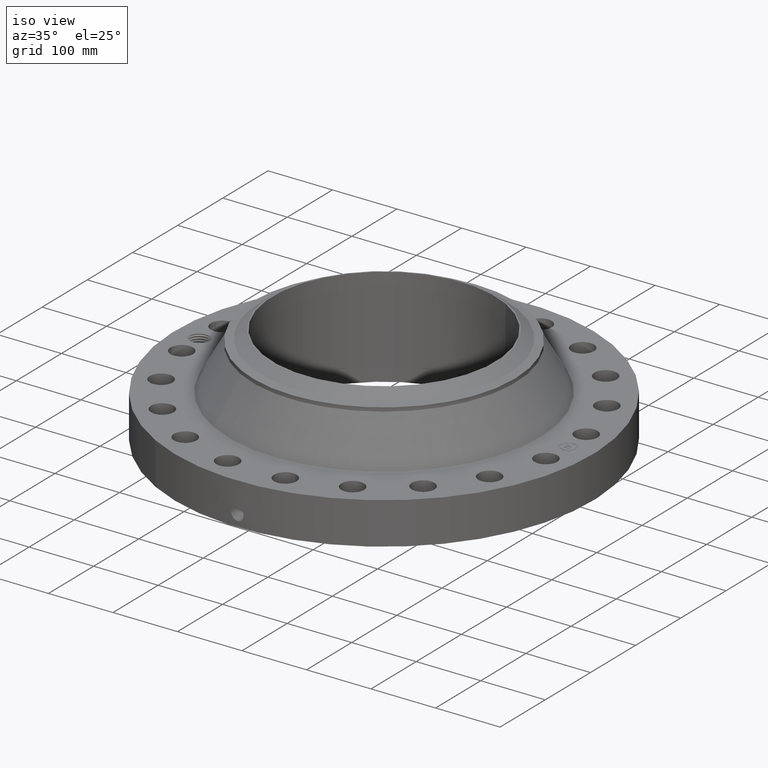
[diagram: clean part render]
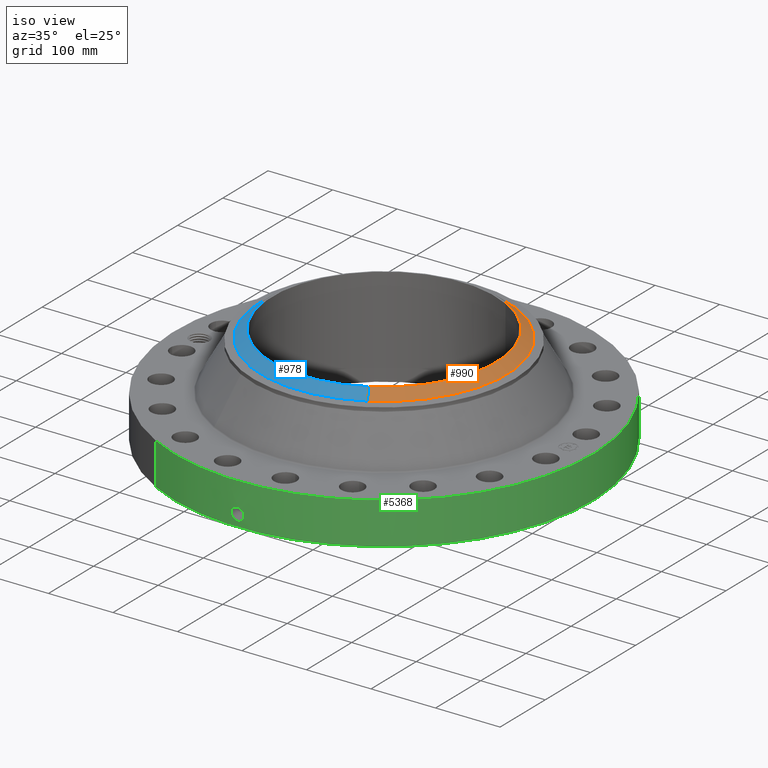
[diagram: same view with three faces highlighted in distinct colors, each labeled with its STEP entity id]
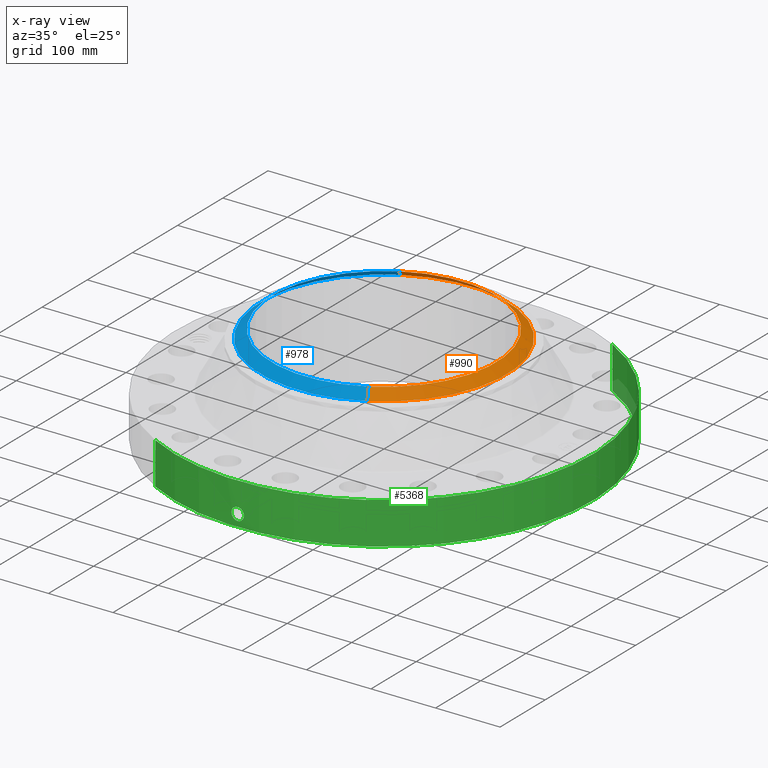
[diagram: x-ray of the same camera — body ghosted, the three highlighted faces saturated]
A machine part, iso view with three faces highlighted in distinct colors.
The next image is the same camera in x-ray (body ghosted, the three faces saturated) — at least one of them is partly hidden behind the body in this view.
Their STEP definitions:

[orange] entity #990 — the highlighted conical surface has half-angle 52.5 deg.
#515=AXIS2_PLACEMENT_3D('Circle Axis2P3D',#513,#514,$) ;
#951=AXIS2_PLACEMENT_3D('Cone Axis2P3D',#948,#949,#950) ;
#981=AXIS2_PLACEMENT_3D('Circle Axis2P3D',#979,#980,$) ;
#513=CARTESIAN_POINT('Axis2P3D Location',(0.,0.,6.06300000002)) ;
#517=CARTESIAN_POINT('Vertex',(3.2887346197,-6.01998834133,6.06300000002)) ;
#519=CARTESIAN_POINT('Vertex',(-3.2887346197,6.01998834133,6.06300000002)) ;
#948=CARTESIAN_POINT('Axis2P3D Location',(0.,0.,6.06300000002)) ;
#953=CARTESIAN_POINT('Line Origine',(-3.44367592225,6.30360649323,5.81501437259)) ;
#957=CARTESIAN_POINT('Vertex',(-3.5986172248,6.58722464514,5.56702874515)) ;
#964=CARTESIAN_POINT('Vertex',(3.5986172248,-6.58722464514,5.56702874515)) ;
#967=CARTESIAN_POINT('Line Origine',(3.44367592225,-6.30360649323,5.81501437259)) ;
#979=CARTESIAN_POINT('Axis2P3D Location',(0.,0.,5.56702874515)) ;
#514=DIRECTION('Axis2P3D Direction',(0.,0.,-0.0393700787402)) ;
#949=DIRECTION('Axis2P3D Direction',(-0.,-0.,-0.0393700787402)) ;
#950=DIRECTION('Axis2P3D XDirection',(-0.0188750212049,0.0345504945626,0.)) ;
#954=DIRECTION('Vector Direction',(-0.014974561121,0.02741075027,-0.023966985394)) ;
#968=DIRECTION('Vector Direction',(0.014974561121,-0.02741075027,-0.023966985394)) ;
#980=DIRECTION('Axis2P3D Direction',(0.,0.,-0.0393700787402)) ;
#955=VECTOR('Line Direction',#954,0.0393700787402) ;
#969=VECTOR('Line Direction',#968,0.0393700787402) ;
#985=ORIENTED_EDGE('',*,*,#521,.F.) ;
#986=ORIENTED_EDGE('',*,*,#971,.T.) ;
#987=ORIENTED_EDGE('',*,*,#983,.T.) ;
#988=ORIENTED_EDGE('',*,*,#959,.F.) ;
#990=ADVANCED_FACE('PartBody',(#989),#952,.T.) ;
#516=CIRCLE('generated circle',#515,6.85974015751) ;
#982=CIRCLE('generated circle',#981,7.50610248105) ;
#952=CONICAL_SURFACE('Cone',#951,6.85974015751,0.916297857297) ;
#521=EDGE_CURVE('',#518,#520,#516,.F.) ;
#959=EDGE_CURVE('',#520,#958,#956,.T.) ;
#971=EDGE_CURVE('',#518,#965,#970,.T.) ;
#983=EDGE_CURVE('',#965,#958,#982,.F.) ;
#984=EDGE_LOOP('',(#985,#986,#987,#988)) ;
#989=FACE_OUTER_BOUND('',#984,.T.) ;
#956=LINE('Line',#953,#955) ;
#970=LINE('Line',#967,#969) ;
#518=VERTEX_POINT('',#517) ;
#520=VERTEX_POINT('',#519) ;
#958=VERTEX_POINT('',#957) ;
#965=VERTEX_POINT('',#964) ;

[blue] entity #978 — the highlighted conical surface has half-angle 52.5 deg.
#524=AXIS2_PLACEMENT_3D('Circle Axis2P3D',#522,#523,$) ;
#951=AXIS2_PLACEMENT_3D('Cone Axis2P3D',#948,#949,#950) ;
#962=AXIS2_PLACEMENT_3D('Circle Axis2P3D',#960,#961,$) ;
#517=CARTESIAN_POINT('Vertex',(3.2887346197,-6.01998834133,6.06300000002)) ;
#519=CARTESIAN_POINT('Vertex',(-3.2887346197,6.01998834133,6.06300000002)) ;
#522=CARTESIAN_POINT('Axis2P3D Location',(0.,0.,6.06300000002)) ;
#948=CARTESIAN_POINT('Axis2P3D Location',(0.,0.,6.06300000002)) ;
#953=CARTESIAN_POINT('Line Origine',(-3.44367592225,6.30360649323,5.81501437259)) ;
#957=CARTESIAN_POINT('Vertex',(-3.5986172248,6.58722464514,5.56702874515)) ;
#960=CARTESIAN_POINT('Axis2P3D Location',(0.,0.,5.56702874515)) ;
#964=CARTESIAN_POINT('Vertex',(3.5986172248,-6.58722464514,5.56702874515)) ;
#967=CARTESIAN_POINT('Line Origine',(3.44367592225,-6.30360649323,5.81501437259)) ;
#523=DIRECTION('Axis2P3D Direction',(0.,0.,-0.0393700787402)) ;
#949=DIRECTION('Axis2P3D Direction',(-0.,-0.,-0.0393700787402)) ;
#950=DIRECTION('Axis2P3D XDirection',(-0.0188750212049,0.0345504945626,0.)) ;
#954=DIRECTION('Vector Direction',(-0.014974561121,0.02741075027,-0.023966985394)) ;
#961=DIRECTION('Axis2P3D Direction',(0.,0.,-0.0393700787402)) ;
#968=DIRECTION('Vector Direction',(0.014974561121,-0.02741075027,-0.023966985394)) ;
#955=VECTOR('Line Direction',#954,0.0393700787402) ;
#969=VECTOR('Line Direction',#968,0.0393700787402) ;
#973=ORIENTED_EDGE('',*,*,#526,.F.) ;
#974=ORIENTED_EDGE('',*,*,#959,.T.) ;
#975=ORIENTED_EDGE('',*,*,#966,.T.) ;
#976=ORIENTED_EDGE('',*,*,#971,.F.) ;
#978=ADVANCED_FACE('PartBody',(#977),#952,.T.) ;
#525=CIRCLE('generated circle',#524,6.85974015751) ;
#963=CIRCLE('generated circle',#962,7.50610248105) ;
#952=CONICAL_SURFACE('Cone',#951,6.85974015751,0.916297857297) ;
#526=EDGE_CURVE('',#520,#518,#525,.F.) ;
#959=EDGE_CURVE('',#520,#958,#956,.T.) ;
#966=EDGE_CURVE('',#958,#965,#963,.F.) ;
#971=EDGE_CURVE('',#518,#965,#970,.T.) ;
#972=EDGE_LOOP('',(#973,#974,#975,#976)) ;
#977=FACE_OUTER_BOUND('',#972,.T.) ;
#956=LINE('Line',#953,#955) ;
#970=LINE('Line',#967,#969) ;
#518=VERTEX_POINT('',#517) ;
#520=VERTEX_POINT('',#519) ;
#958=VERTEX_POINT('',#957) ;
#965=VERTEX_POINT('',#964) ;

[green] entity #5368 — the highlighted cylindrical surface (partial cylindrical patch) has radius 323.85 mm, axis along (0, 0, -1).
#3858=AXIS2_PLACEMENT_3D('Circle Axis2P3D',#3856,#3857,$) ;
#4479=AXIS2_PLACEMENT_3D('Circle Axis2P3D',#4477,#4478,$) ;
#5169=AXIS2_PLACEMENT_3D('Cylinder Axis2P3D',#5166,#5167,#5168) ;
#3851=CARTESIAN_POINT('Vertex',(-6.11267561723,-11.1891776641,1.1189649382E-015)) ;
#3853=CARTESIAN_POINT('Vertex',(6.11267561723,11.1891776641,1.1189649382E-015)) ;
#3856=CARTESIAN_POINT('Axis2P3D Location',(0.,0.,0.)) ;
#4477=CARTESIAN_POINT('Axis2P3D Location',(0.,0.,2.56300000001)) ;
#4481=CARTESIAN_POINT('Vertex',(6.11267561723,11.1891776641,2.56300000001)) ;
#4483=CARTESIAN_POINT('Vertex',(-6.11267561723,-11.1891776641,2.56300000001)) ;
#5166=CARTESIAN_POINT('Axis2P3D Location',(0.,0.,3.03150000001)) ;
#5171=CARTESIAN_POINT('Line Origine',(-6.11267561723,-11.1891776641,1.28150000001)) ;
#5176=CARTESIAN_POINT('Line Origine',(6.11267561723,11.1891776641,1.28150000001)) ;
#5282=CARTESIAN_POINT('Control Point',(0.000716221208487,-12.7499999799,1.10411846088)) ;
#5283=CARTESIAN_POINT('Control Point',(0.0192056781366,-12.7499989413,1.10408110421)) ;
#5284=CARTESIAN_POINT('Control Point',(0.0376918605387,-12.7499573581,1.10259136038)) ;
#5285=CARTESIAN_POINT('Control Point',(0.0559484067636,-12.7498772456,1.09966767561)) ;
#5286=CARTESIAN_POINT('Vertex',(0.000715800027101,-12.74999998,1.10411851024)) ;
#5288=CARTESIAN_POINT('Vertex',(0.0559392649745,-12.7498775403,1.09966915855)) ;
#5292=CARTESIAN_POINT('Control Point',(0.0559391674778,-12.7498772861,1.09966860309)) ;
#5293=CARTESIAN_POINT('Control Point',(0.0961344607188,-12.7497009322,1.09514556337)) ;
#5294=CARTESIAN_POINT('Control Point',(0.135662238861,-12.7493301537,1.08330267512)) ;
#5295=CARTESIAN_POINT('Control Point',(0.172040385174,-12.7488392455,1.06494868271)) ;
#5296=CARTESIAN_POINT('Vertex',(0.172040385174,-12.7488392455,1.06494868271)) ;
#5300=CARTESIAN_POINT('Control Point',(0.0308107318399,-12.7499627725,0.341174001278)) ;
#5301=CARTESIAN_POINT('Control Point',(0.0999545299738,-12.7497956841,0.349935336603)) ;
#5302=CARTESIAN_POINT('Control Point',(0.166759327886,-12.7491655316,0.374146678936)) ;
#5303=CARTESIAN_POINT('Control Point',(0.226389865575,-12.7481446892,0.412973157252)) ;
#5304=CARTESIAN_POINT('Control Point',(0.298759169496,-12.7465677606,0.487010236012)) ;
#5305=CARTESIAN_POINT('Control Point',(0.34348090487,-12.7453828607,0.57721566925)) ;
#5306=CARTESIAN_POINT('Control Point',(0.354926191079,-12.7450633095,0.607930225883)) ;
#5307=CARTESIAN_POINT('Control Point',(0.373429784098,-12.7445343217,0.679245154671)) ;
#5308=CARTESIAN_POINT('Control Point',(0.375104757108,-12.744479267,0.752596904483)) ;
#5309=CARTESIAN_POINT('Control Point',(0.370729719895,-12.7446111714,0.793234525347)) ;
#5310=CARTESIAN_POINT('Control Point',(0.348316602872,-12.7452690159,0.885611096278)) ;
#5311=CARTESIAN_POINT('Control Point',(0.29900553411,-12.7465456055,0.966961752377)) ;
#5312=CARTESIAN_POINT('Control Point',(0.262643867128,-12.747395247,1.00786909636)) ;
#5313=CARTESIAN_POINT('Control Point',(0.219548979704,-12.7481981364,1.04097900281)) ;
#5314=CARTESIAN_POINT('Control Point',(0.172040385174,-12.7488392455,1.06494868271)) ;
#5315=CARTESIAN_POINT('Vertex',(0.0308107318399,-12.7499627725,0.341174001278)) ;
#5319=CARTESIAN_POINT('Control Point',(0.0308107318399,-12.7499627725,0.341174001278)) ;
#5320=CARTESIAN_POINT('Control Point',(0.0205353390007,-12.7499876033,0.34087236656)) ;
#5321=CARTESIAN_POINT('Control Point',(0.0102530975904,-12.7500000022,0.340939426773)) ;
#5322=CARTESIAN_POINT('Control Point',(-2.72878355522E-006,-12.7500000001,0.341374667805)) ;
#5323=CARTESIAN_POINT('Vertex',(-2.72878354097E-006,-12.7500000001,0.341374667805)) ;
#5327=CARTESIAN_POINT('Control Point',(-0.192797685506,-12.7485422325,0.397096993603)) ;
#5328=CARTESIAN_POINT('Control Point',(-0.149071703588,-12.7492035056,0.371854438812)) ;
#5329=CARTESIAN_POINT('Control Point',(-0.101128956357,-12.7497293522,0.353715242692)) ;
#5330=CARTESIAN_POINT('Control Point',(-0.0508105127771,-12.7499999892,0.343530869225)) ;
#5331=CARTESIAN_POINT('Control Point',(-2.7287835439E-006,-12.7500000001,0.341374667805)) ;
#5332=CARTESIAN_POINT('Vertex',(-0.192797685506,-12.7485422325,0.397096993603)) ;
#5336=CARTESIAN_POINT('Control Point',(-0.192797685506,-12.7485422325,0.397096993603)) ;
#5337=CARTESIAN_POINT('Control Point',(-0.249749527896,-12.7476809432,0.429974700737)) ;
#5338=CARTESIAN_POINT('Control Point',(-0.300014608031,-12.746602678,0.474147636339)) ;
#5339=CARTESIAN_POINT('Control Point',(-0.340461265097,-12.7455024634,0.528136964066)) ;
#5340=CARTESIAN_POINT('Control Point',(-0.385069985557,-12.7441957941,0.62617950619)) ;
#5341=CARTESIAN_POINT('Control Point',(-0.393917723157,-12.7439118252,0.731478481526)) ;
#5342=CARTESIAN_POINT('Control Point',(-0.39189436123,-12.7439760979,0.771571275501)) ;
#5343=CARTESIAN_POINT('Control Point',(-0.377905160465,-12.7444129305,0.846398271139)) ;
#5344=CARTESIAN_POINT('Control Point',(-0.345953392159,-12.7453207294,0.914777545499)) ;
#5345=CARTESIAN_POINT('Control Point',(-0.326955720915,-12.7458335859,0.945195634628)) ;
#5346=CARTESIAN_POINT('Control Point',(-0.26505337998,-12.7473627061,1.02210535844)) ;
#5347=CARTESIAN_POINT('Control Point',(-0.181582159407,-12.7488883627,1.07540227935)) ;
#5348=CARTESIAN_POINT('Control Point',(-0.122355707944,-12.7496388059,1.09761818401)) ;
#5349=CARTESIAN_POINT('Control Point',(-0.0606924383739,-12.7500001232,1.10712989)) ;
#5350=CARTESIAN_POINT('Control Point',(2.58579355354E-005,-12.75,1.10415298431)) ;
#5351=CARTESIAN_POINT('Vertex',(2.58579355447E-005,-12.75,1.10415298431)) ;
#5355=CARTESIAN_POINT('Control Point',(0.000715800017366,-12.74999998,1.10411851022)) ;
#5356=CARTESIAN_POINT('Control Point',(0.000370853402301,-12.7499999993,1.10413606982)) ;
#5357=CARTESIAN_POINT('Control Point',(2.58579407851E-005,-12.75,1.1041529843)) ;
#3857=DIRECTION('Axis2P3D Direction',(0.,0.,-0.0393700787402)) ;
#4478=DIRECTION('Axis2P3D Direction',(0.,0.,-0.0393700787402)) ;
#5167=DIRECTION('Axis2P3D Direction',(0.,0.,-0.0393700787402)) ;
#5168=DIRECTION('Axis2P3D XDirection',(0.0188750212049,0.0345504945626,0.)) ;
#5172=DIRECTION('Vector Direction',(0.,0.,-0.0393700787402)) ;
#5177=DIRECTION('Vector Direction',(0.,0.,-0.0393700787402)) ;
#5173=VECTOR('Line Direction',#5172,0.0393700787402) ;
#5178=VECTOR('Line Direction',#5177,0.0393700787402) ;
#5276=ORIENTED_EDGE('',*,*,#3860,.F.) ;
#5277=ORIENTED_EDGE('',*,*,#5180,.T.) ;
#5278=ORIENTED_EDGE('',*,*,#4485,.T.) ;
#5279=ORIENTED_EDGE('',*,*,#5175,.F.) ;
#5360=ORIENTED_EDGE('',*,*,#5290,.T.) ;
#5361=ORIENTED_EDGE('',*,*,#5298,.T.) ;
#5362=ORIENTED_EDGE('',*,*,#5317,.F.) ;
#5363=ORIENTED_EDGE('',*,*,#5325,.T.) ;
#5364=ORIENTED_EDGE('',*,*,#5334,.F.) ;
#5365=ORIENTED_EDGE('',*,*,#5353,.T.) ;
#5366=ORIENTED_EDGE('',*,*,#5358,.F.) ;
#5367=FACE_BOUND('',#5359,.T.) ;
#5368=ADVANCED_FACE('PartBody',(#5280,#5367),#5170,.T.) ;
#5281=B_SPLINE_CURVE_WITH_KNOTS('',3,(#5282,#5283,#5284,#5285),.UNSPECIFIED.,.F.,.U.,(4,4),(34.6164487356,36.6676791323),.UNSPECIFIED.) ;
#5291=B_SPLINE_CURVE_WITH_KNOTS('',3,(#5292,#5293,#5294,#5295),.UNSPECIFIED.,.F.,.U.,(4,4),(0.,4.54498981671),.UNSPECIFIED.) ;
#5299=B_SPLINE_CURVE_WITH_KNOTS('',5,(#5300,#5301,#5302,#5303,#5304,#5305,#5306,#5307,#5308,#5309,#5310,#5311,#5312,#5313,#5314),.UNSPECIFIED.,.F.,.U.,(6,3,3,3,6),(0.,12.1125870098,17.9739560808,25.3575286889,35.2501935189),.UNSPECIFIED.) ;
#5318=B_SPLINE_CURVE_WITH_KNOTS('',3,(#5319,#5320,#5321,#5322),.UNSPECIFIED.,.F.,.U.,(4,4),(0.,1.07185380478),.UNSPECIFIED.) ;
#5326=B_SPLINE_CURVE_WITH_KNOTS('',4,(#5327,#5328,#5329,#5330,#5331),.UNSPECIFIED.,.F.,.U.,(5,5),(0.,7.08001020671),.UNSPECIFIED.) ;
#5335=B_SPLINE_CURVE_WITH_KNOTS('',5,(#5336,#5337,#5338,#5339,#5340,#5341,#5342,#5343,#5344,#5345,#5346,#5347,#5348,#5349,#5350),.UNSPECIFIED.,.F.,.U.,(6,3,3,3,6),(0.,11.5268888655,18.5780205907,24.9818145543,36.3313240802),.UNSPECIFIED.) ;
#5354=B_SPLINE_CURVE_WITH_KNOTS('',2,(#5355,#5356,#5357),.UNSPECIFIED.,.F.,.U.,(3,3),(1.02805934228,1.05385406769),.UNSPECIFIED.) ;
#3859=CIRCLE('generated circle',#3858,12.7500000001) ;
#4480=CIRCLE('generated circle',#4479,12.7500000001) ;
#5170=CYLINDRICAL_SURFACE('generated cylinder',#5169,12.7500000001) ;
#3860=EDGE_CURVE('',#3854,#3852,#3859,.T.) ;
#4485=EDGE_CURVE('',#4482,#4484,#4480,.T.) ;
#5175=EDGE_CURVE('',#3852,#4484,#5174,.F.) ;
#5180=EDGE_CURVE('',#3854,#4482,#5179,.F.) ;
#5290=EDGE_CURVE('',#5287,#5289,#5281,.T.) ;
#5298=EDGE_CURVE('',#5289,#5297,#5291,.T.) ;
#5317=EDGE_CURVE('',#5316,#5297,#5299,.T.) ;
#5325=EDGE_CURVE('',#5316,#5324,#5318,.T.) ;
#5334=EDGE_CURVE('',#5333,#5324,#5326,.T.) ;
#5353=EDGE_CURVE('',#5333,#5352,#5335,.T.) ;
#5358=EDGE_CURVE('',#5287,#5352,#5354,.T.) ;
#5275=EDGE_LOOP('',(#5276,#5277,#5278,#5279)) ;
#5359=EDGE_LOOP('',(#5360,#5361,#5362,#5363,#5364,#5365,#5366)) ;
#5280=FACE_OUTER_BOUND('',#5275,.T.) ;
#5174=LINE('Line',#5171,#5173) ;
#5179=LINE('Line',#5176,#5178) ;
#3852=VERTEX_POINT('',#3851) ;
#3854=VERTEX_POINT('',#3853) ;
#4482=VERTEX_POINT('',#4481) ;
#4484=VERTEX_POINT('',#4483) ;
#5287=VERTEX_POINT('',#5286) ;
#5289=VERTEX_POINT('',#5288) ;
#5297=VERTEX_POINT('',#5296) ;
#5316=VERTEX_POINT('',#5315) ;
#5324=VERTEX_POINT('',#5323) ;
#5333=VERTEX_POINT('',#5332) ;
#5352=VERTEX_POINT('',#5351) ;